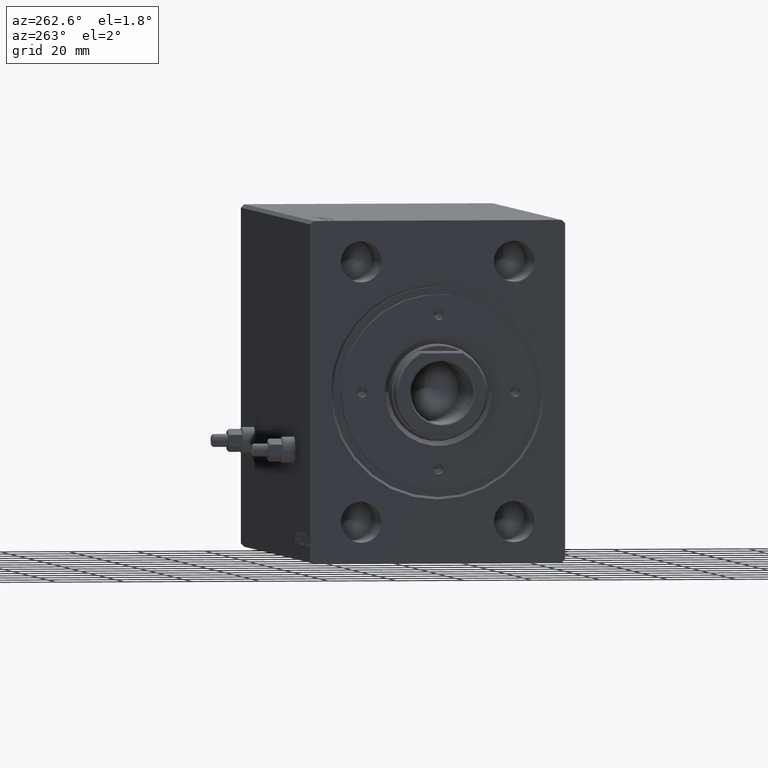
[diagram: clean part render]
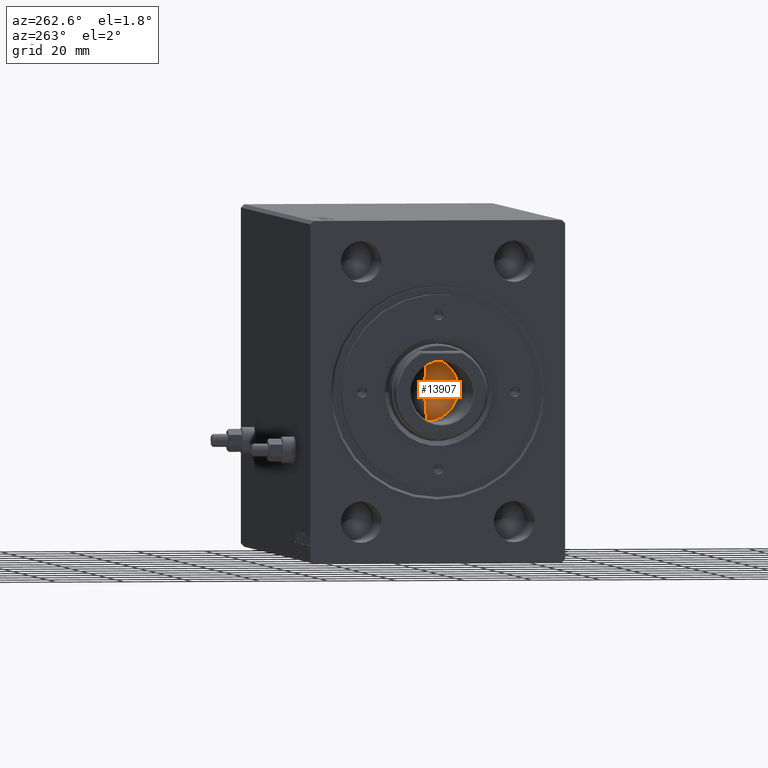
[diagram: same view with one face highlighted and labeled with its STEP entity id]
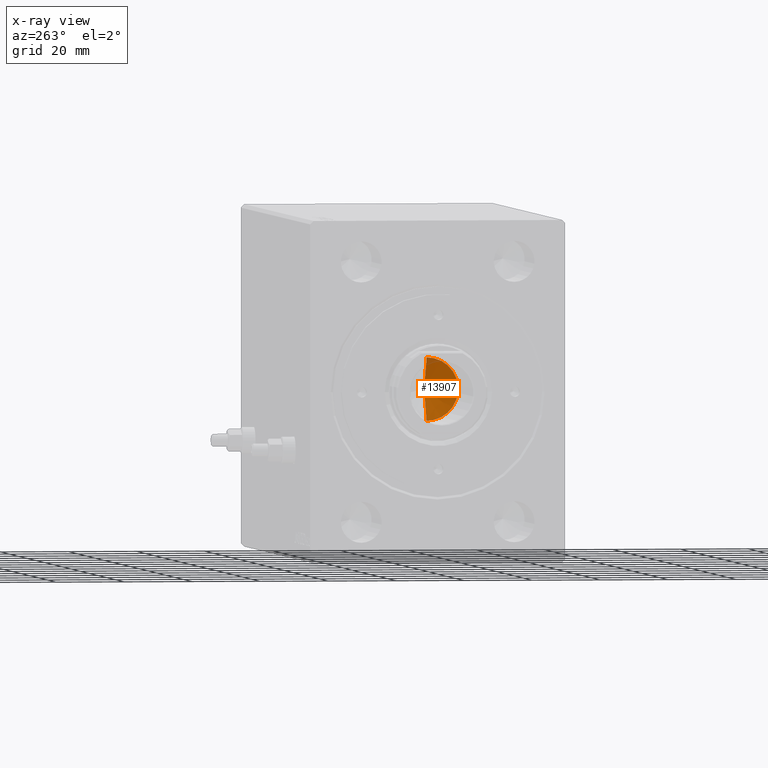
[diagram: x-ray of the same camera — body ghosted, the highlighted face saturated]
A machine part, auxiliary view. The second image highlights one B-rep face of the part: STEP entity #13907.
The next image is the same camera in x-ray: the body ghosted, the highlighted face saturated — about 4% of this face is hidden behind the body in this view.
In plain terms, the highlighted conical surface has half-angle 59 deg.
Its self-contained STEP definition (entity closure, byte-faithful):
#458 = VECTOR ( 'NONE', #24743, 1000.000000000000000 ) ;
#2052 = VERTEX_POINT ( 'NONE', #17107 ) ;
#3036 = LINE ( 'NONE', #31065, #13774 ) ;
#5092 = DIRECTION ( 'NONE',  ( -0.000000000000000000, -0.000000000000000000, 1.000000000000000000 ) ) ;
#6015 = CARTESIAN_POINT ( 'NONE',  ( 9.249999999999994671, 0.000000000000000000, 114.2000000000000028 ) ) ;
#7900 = DIRECTION ( 'NONE',  ( -0.000000000000000000, -0.000000000000000000, 1.000000000000000000 ) ) ;
#10930 = CIRCLE ( 'NONE', #25519, 9.249999999999994671 ) ;
#11245 = CARTESIAN_POINT ( 'NONE',  ( 0.000000000000000000, 0.000000000000000000, 114.2000000000000028 ) ) ;
#12842 = EDGE_CURVE ( 'NONE', #34439, #37823, #25423, .T. ) ;
#13774 = VECTOR ( 'NONE', #37225, 1000.000000000000000 ) ;
#13907 = ADVANCED_FACE ( 'NONE', ( #14665 ), #28905, .F. ) ;
#14665 = FACE_OUTER_BOUND ( 'NONE', #26167, .T. ) ;
#17107 = CARTESIAN_POINT ( 'NONE',  ( -9.249999999999994671, 1.132798289211300909E-15, 114.2000000000000028 ) ) ;
#17923 = CARTESIAN_POINT ( 'NONE',  ( 0.000000000000000000, 0.000000000000000000, 114.2000000000000028 ) ) ;
#21092 = ORIENTED_EDGE ( 'NONE', *, *, #12842, .F. ) ;
#22644 = EDGE_CURVE ( 'NONE', #34439, #2052, #3036, .T. ) ;
#24347 = EDGE_CURVE ( 'NONE', #2052, #37823, #10930, .T. ) ;
#24743 = DIRECTION ( 'NONE',  ( 0.8571673007021117785, 0.000000000000000000, 0.5150380749100550437 ) ) ;
#25423 = LINE ( 'NONE', #32025, #458 ) ;
#25438 = DIRECTION ( 'NONE',  ( 1.000000000000000000, 0.000000000000000000, 0.000000000000000000 ) ) ;
#25519 = AXIS2_PLACEMENT_3D ( 'NONE', #17923, #7900, #25438 ) ;
#25776 = ORIENTED_EDGE ( 'NONE', *, *, #22644, .T. ) ;
#26167 = EDGE_LOOP ( 'NONE', ( #21092, #25776, #37968 ) ) ;
#26504 = DIRECTION ( 'NONE',  ( 1.000000000000000000, 0.000000000000000000, 0.000000000000000000 ) ) ;
#28905 = CONICAL_SURFACE ( 'NONE', #29620, 9.249999999999994671, 1.029744258676653423 ) ;
#29620 = AXIS2_PLACEMENT_3D ( 'NONE', #11245, #5092, #26504 ) ;
#31065 = CARTESIAN_POINT ( 'NONE',  ( -9.249999999999994671, 1.132798289211300909E-15, 114.2000000000000028 ) ) ;
#32025 = CARTESIAN_POINT ( 'NONE',  ( 9.249999999999994671, 0.000000000000000000, 114.2000000000000028 ) ) ;
#34439 = VERTEX_POINT ( 'NONE', #41170 ) ;
#37225 = DIRECTION ( 'NONE',  ( -0.8571673007021117785, 1.049727191138617956E-16, 0.5150380749100550437 ) ) ;
#37823 = VERTEX_POINT ( 'NONE', #6015 ) ;
#37968 = ORIENTED_EDGE ( 'NONE', *, *, #24347, .T. ) ;
#41170 = CARTESIAN_POINT ( 'NONE',  ( -1.046994375366439223E-14, 0.000000000000000000, 108.6420392739950529 ) ) ;